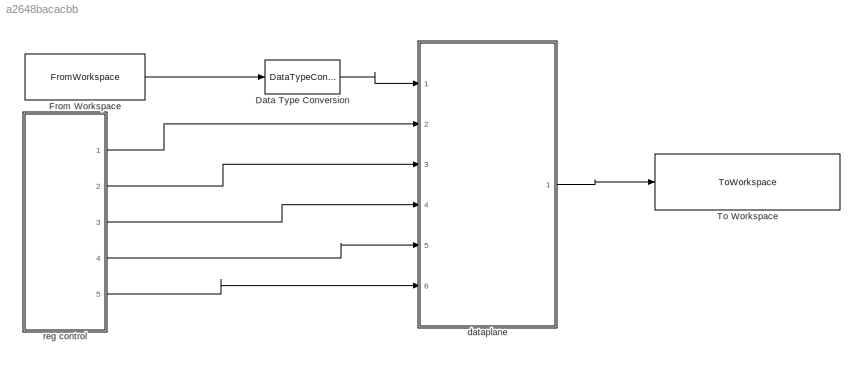
MODEL slx_a2648bacacbb
KIND model
CONFIG AbsTol = auto
CONFIG EnableMultiTasking = off
CONFIG FixedStep = auto
CONFIG InitFcn = callback_init
CONFIG MaxStep = auto
CONFIG MinStep = auto
CONFIG RelTol = 1e-3
CONFIG SampleTimeConstraint = Unconstrained
CONFIG SolverName = VariableStepAuto
CONFIG StartTime = 0.0
CONFIG StopFcn = callback_stop
CONFIG StopTime = stop_time
BLOCK [DataTypeConversion] Data Type Conversion
  OutDataTypeStr = fixdt(1,mp.W_bits,mp.F_bits)
  RndMeth = Floor
  SaturateOnIntegerOverflow = off
BLOCK [FromWorkspace] From Workspace
  OutputAfterFinalValue = Holding final value
  SampleTime = mp.Ts
  VariableName = mp.input_timeseries
BLOCK [ToWorkspace] To Workspace
  FixptAsFi = on
  MaxDataPoints = inf
  Ports = [1]
  SampleTime = -1
  SaveFormat = Timeseries
  VariableName = output_timeseries
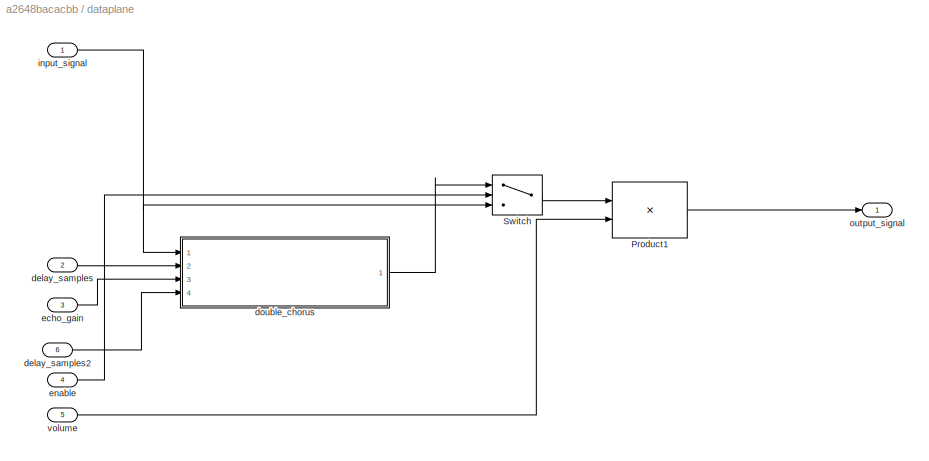
BLOCK [SubSystem] dataplane
  Ports = [6, 1]
  RequestExecContextInheritance = off
BLOCK [Product] dataplane/Product1
  OutDataTypeStr = Inherit: Same as first input
  Ports = [2, 1]
BLOCK [Switch] dataplane/Switch
  Criteria = u2 > Threshold
  InputSameDT = off
  SaturateOnIntegerOverflow = off
BLOCK [Inport] dataplane/delay_samples
  Port = 2
BLOCK [Inport] dataplane/delay_samples2
  Port = 6
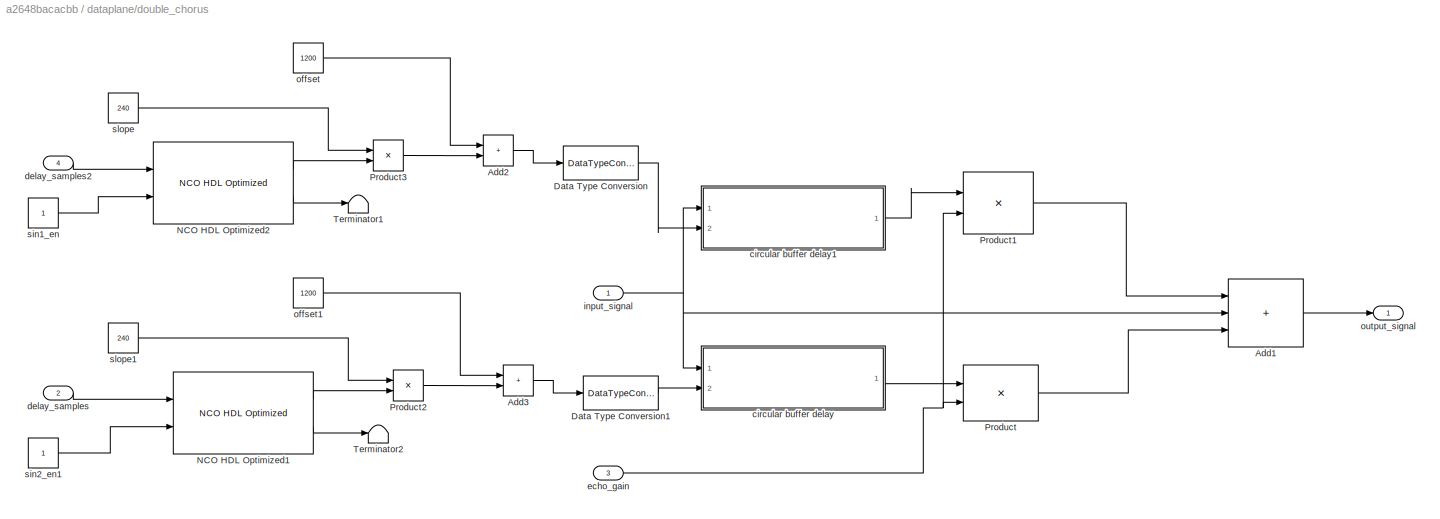
BLOCK [SubSystem] dataplane/double_chorus
  Ports = [4, 1]
  RequestExecContextInheritance = off
BLOCK [Sum] dataplane/double_chorus/Add1
  IconShape = rectangular
  Inputs = +++
  OutDataTypeStr = Inherit: Same as first input
  Ports = [3, 1]
BLOCK [Sum] dataplane/double_chorus/Add2
  IconShape = rectangular
  OutDataTypeStr = fixdt(0,16,0)
  Ports = [2, 1]
BLOCK [Sum] dataplane/double_chorus/Add3
  IconShape = rectangular
  OutDataTypeStr = fixdt(0,16,0)
  Ports = [2, 1]
BLOCK [DataTypeConversion] dataplane/double_chorus/Data Type Conversion
  OutDataTypeStr = fixdt(0,mp.DPRAM1_address_size,0)
  RndMeth = Floor
  SaturateOnIntegerOverflow = off
BLOCK [DataTypeConversion] dataplane/double_chorus/Data Type Conversion1
  OutDataTypeStr = fixdt(0,mp.DPRAM1_address_size,0)
  RndMeth = Floor
  SaturateOnIntegerOverflow = off
BLOCK [Reference] dataplane/double_chorus/NCO HDL Optimized1  REF=dsphdlsigops/NCO
HDL Optimized
  Ports = [2, 2]
  SourceBlock = dsphdlsigops/NCO\nHDL Optimized
  SourceProductName = DSP System Toolbox HDL Support
  SourceType = NCO HDL Optimized
BLOCK [Reference] dataplane/double_chorus/NCO HDL Optimized2  REF=dsphdlsigops/NCO
HDL Optimized
  Ports = [2, 2]
  SourceBlock = dsphdlsigops/NCO\nHDL Optimized
  SourceProductName = DSP System Toolbox HDL Support
  SourceType = NCO HDL Optimized
BLOCK [Product] dataplane/double_chorus/Product
  OutDataTypeStr = Inherit: Same as first input
  Ports = [2, 1]
BLOCK [Product] dataplane/double_chorus/Product1
  OutDataTypeStr = Inherit: Same as first input
  Ports = [2, 1]
BLOCK [Product] dataplane/double_chorus/Product2
  OutDataTypeStr = fixdt(0,16,0)
  Ports = [2, 1]
BLOCK [Product] dataplane/double_chorus/Product3
  OutDataTypeStr = fixdt(0,16,0)
  Ports = [2, 1]
BLOCK [Terminator] dataplane/double_chorus/Terminator1
BLOCK [Terminator] dataplane/double_chorus/Terminator2
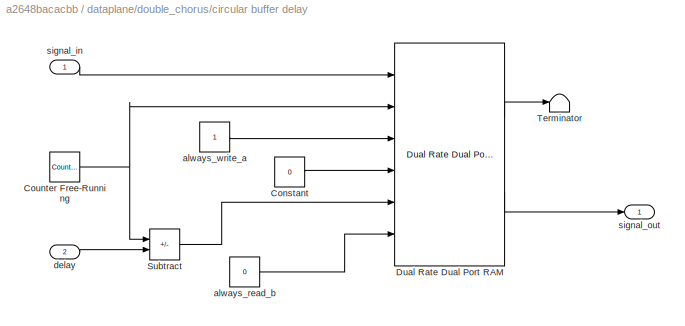
BLOCK [SubSystem] dataplane/double_chorus/circular buffer delay
  Ports = [2, 1]
  RequestExecContextInheritance = off
BLOCK [Constant] dataplane/double_chorus/circular buffer delay/Constant
  OutDataTypeStr = fixdt(1,mp.W_bits,mp.F_bits)
  SampleTime = mp.Ts
  Value = 0
BLOCK [Reference] dataplane/double_chorus/circular buffer delay/Counter Free-Running  REF=simulink/Sources/Counter
Free-Running
  Ports = [0, 1]
  SourceBlock = simulink/Sources/Counter\nFree-Running
  SourceProductBaseCode = SL
  SourceType = Counter Free-Running
BLOCK [Reference] dataplane/double_chorus/circular buffer delay/Dual Rate Dual Port RAM  REF=hdlsllib/HDL RAMs/Dual Rate Dual Port RAM
  Ports = [6, 2]
  SourceBlock = hdlsllib/HDL RAMs/Dual Rate Dual Port RAM
  SourceProductBaseCode = SL
  SourceType = Dual-rate dual-port RAM
BLOCK [Sum] dataplane/double_chorus/circular buffer delay/Subtract
  IconShape = rectangular
  Inputs = +-
  OutDataTypeStr = Inherit: Same as first input
  Ports = [2, 1]
BLOCK [Terminator] dataplane/double_chorus/circular buffer delay/Terminator
BLOCK [Constant] dataplane/double_chorus/circular buffer delay/always_read_b
  OutDataTypeStr = boolean
  SampleTime = mp.Ts
  Value = 0
BLOCK [Constant] dataplane/double_chorus/circular buffer delay/always_write_a
  OutDataTypeStr = boolean
  SampleTime = mp.Ts
BLOCK [Inport] dataplane/double_chorus/circular buffer delay/delay
  Port = 2
BLOCK [Inport] dataplane/double_chorus/circular buffer delay/signal_in
BLOCK [Outport] dataplane/double_chorus/circular buffer delay/signal_out
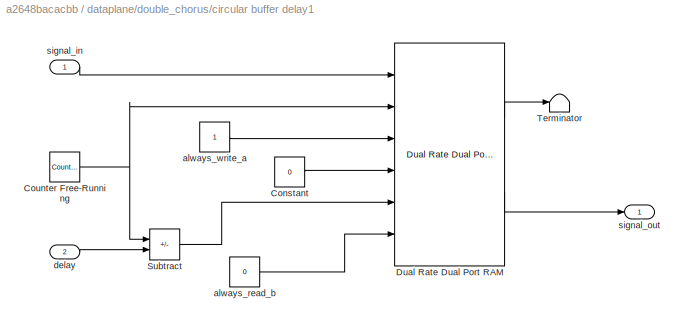
BLOCK [SubSystem] dataplane/double_chorus/circular buffer delay1
  Ports = [2, 1]
  RequestExecContextInheritance = off
BLOCK [Constant] dataplane/double_chorus/circular buffer delay1/Constant
  OutDataTypeStr = fixdt(1,mp.W_bits,mp.F_bits)
  SampleTime = mp.Ts
  Value = 0
BLOCK [Reference] dataplane/double_chorus/circular buffer delay1/Counter Free-Running  REF=simulink/Sources/Counter
Free-Running
  Ports = [0, 1]
  SourceBlock = simulink/Sources/Counter\nFree-Running
  SourceProductBaseCode = SL
  SourceType = Counter Free-Running
BLOCK [Reference] dataplane/double_chorus/circular buffer delay1/Dual Rate Dual Port RAM  REF=hdlsllib/HDL RAMs/Dual Rate Dual Port RAM
  Ports = [6, 2]
  SourceBlock = hdlsllib/HDL RAMs/Dual Rate Dual Port RAM
  SourceProductBaseCode = SL
  SourceType = Dual-rate dual-port RAM
BLOCK [Sum] dataplane/double_chorus/circular buffer delay1/Subtract
  IconShape = rectangular
  Inputs = +-
  OutDataTypeStr = Inherit: Same as first input
  Ports = [2, 1]
BLOCK [Terminator] dataplane/double_chorus/circular buffer delay1/Terminator
BLOCK [Constant] dataplane/double_chorus/circular buffer delay1/always_read_b
  OutDataTypeStr = boolean
  SampleTime = mp.Ts
  Value = 0
BLOCK [Constant] dataplane/double_chorus/circular buffer delay1/always_write_a
  OutDataTypeStr = boolean
  SampleTime = mp.Ts
BLOCK [Inport] dataplane/double_chorus/circular buffer delay1/delay
  Port = 2
BLOCK [Inport] dataplane/double_chorus/circular buffer delay1/signal_in
BLOCK [Outport] dataplane/double_chorus/circular buffer delay1/signal_out
BLOCK [Inport] dataplane/double_chorus/delay_samples
  Port = 2
BLOCK [Inport] dataplane/double_chorus/delay_samples2
  Port = 4
BLOCK [Inport] dataplane/double_chorus/echo_gain
  Port = 3
BLOCK [Inport] dataplane/double_chorus/input_signal
BLOCK [Constant] dataplane/double_chorus/offset
  OutDataTypeStr = fixdt(0,16,0)
  SampleTime = mp.Ts
  Value = 1200
BLOCK [Constant] dataplane/double_chorus/offset1
  OutDataTypeStr = fixdt(0,16,0)
  SampleTime = mp.Ts
  Value = 1200
BLOCK [Outport] dataplane/double_chorus/output_signal
BLOCK [Constant] dataplane/double_chorus/sin1_en
  OutDataTypeStr = boolean
  SampleTime = mp.Ts
BLOCK [Constant] dataplane/double_chorus/sin2_en1
  OutDataTypeStr = boolean
  SampleTime = mp.Ts
BLOCK [Constant] dataplane/double_chorus/slope
  OutDataTypeStr = fixdt(0,16,0)
  SampleTime = mp.Ts
  Value = 240
BLOCK [Constant] dataplane/double_chorus/slope1
  OutDataTypeStr = fixdt(0,16,0)
  SampleTime = mp.Ts
  Value = 240
BLOCK [Inport] dataplane/echo_gain
  Port = 3
BLOCK [Inport] dataplane/enable
  Port = 4
BLOCK [Inport] dataplane/input_signal
BLOCK [Outport] dataplane/output_signal
BLOCK [Inport] dataplane/volume
  Port = 5
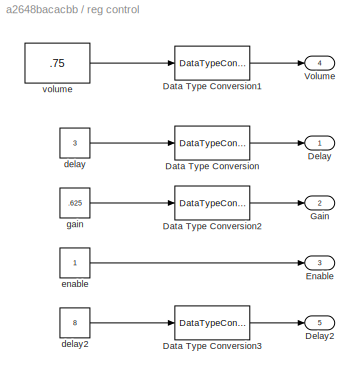
BLOCK [SubSystem] reg control
  Ports = [0, 5]
  RequestExecContextInheritance = off
BLOCK [DataTypeConversion] reg control/Data Type Conversion
  OutDataTypeStr = fixdt(0,mp.DPRAM1_address_size,0)
  RndMeth = Floor
  SaturateOnIntegerOverflow = off
BLOCK [DataTypeConversion] reg control/Data Type Conversion1
  OutDataTypeStr = fixdt(0,mp.W_gain,mp.F_gain)
  OutMax = [1]
  OutMin = [0]
  RndMeth = Floor
  SaturateOnIntegerOverflow = off
BLOCK [DataTypeConversion] reg control/Data Type Conversion2
  OutDataTypeStr = fixdt(0,mp.W_gain,mp.F_gain)
  RndMeth = Floor
  SaturateOnIntegerOverflow = off
BLOCK [DataTypeConversion] reg control/Data Type Conversion3
  OutDataTypeStr = fixdt(0,mp.DPRAM1_address_size,0)
  RndMeth = Floor
  SaturateOnIntegerOverflow = off
BLOCK [Outport] reg control/Delay
BLOCK [Outport] reg control/Delay2
  Port = 5
BLOCK [Outport] reg control/Enable
  Port = 3
BLOCK [Outport] reg control/Gain
  Port = 2
BLOCK [Outport] reg control/Volume
  Port = 4
BLOCK [Constant] reg control/delay
  SampleTime = mp.Ts
  Value = 3
BLOCK [Constant] reg control/delay2
  SampleTime = mp.Ts
  Value = 8
BLOCK [Constant] reg control/enable
  OutDataTypeStr = boolean
  SampleTime = mp.Ts
BLOCK [Constant] reg control/gain
  SampleTime = mp.Ts
  Value = .625
BLOCK [Constant] reg control/volume
  SampleTime = mp.Ts
  Value = .75
LINE Data Type Conversion:1 -> dataplane:1
LINE From Workspace:1 -> Data Type Conversion:1
LINE dataplane/Product1:1 -> dataplane/output_signal:1
LINE dataplane/Switch:1 -> dataplane/Product1:1
LINE dataplane/delay_samples2:1 -> dataplane/double_chorus:4
LINE dataplane/delay_samples:1 -> dataplane/double_chorus:2
LINE dataplane/double_chorus/Add1:1 -> dataplane/double_chorus/output_signal:1
LINE dataplane/double_chorus/Add2:1 -> dataplane/double_chorus/Data Type Conversion:1
LINE dataplane/double_chorus/Add3:1 -> dataplane/double_chorus/Data Type Conversion1:1
LINE dataplane/double_chorus/Data Type Conversion1:1 -> dataplane/double_chorus/circular buffer delay:2
LINE dataplane/double_chorus/Data Type Conversion:1 -> dataplane/double_chorus/circular buffer delay1:2
LINE dataplane/double_chorus/NCO HDL Optimized1:1 -> dataplane/double_chorus/Product2:2
LINE dataplane/double_chorus/NCO HDL Optimized1:2 -> dataplane/double_chorus/Terminator2:1
LINE dataplane/double_chorus/NCO HDL Optimized2:1 -> dataplane/double_chorus/Product3:2
LINE dataplane/double_chorus/NCO HDL Optimized2:2 -> dataplane/double_chorus/Terminator1:1
LINE dataplane/double_chorus/Product1:1 -> dataplane/double_chorus/Add1:1
LINE dataplane/double_chorus/Product2:1 -> dataplane/double_chorus/Add3:2
LINE dataplane/double_chorus/Product3:1 -> dataplane/double_chorus/Add2:2
LINE dataplane/double_chorus/Product:1 -> dataplane/double_chorus/Add1:3
LINE dataplane/double_chorus/circular buffer delay/Constant:1 -> dataplane/double_chorus/circular buffer delay/Dual Rate Dual Port RAM:4
NET dataplane/double_chorus/circular buffer delay/Counter Free-Running:1 -> dataplane/double_chorus/circular buffer delay/Dual Rate Dual Port RAM:2, dataplane/double_chorus/circular buffer delay/Subtract:1
LINE dataplane/double_chorus/circular buffer delay/Dual Rate Dual Port RAM:1 -> dataplane/double_chorus/circular buffer delay/Terminator:1
LINE dataplane/double_chorus/circular buffer delay/Dual Rate Dual Port RAM:2 -> dataplane/double_chorus/circular buffer delay/signal_out:1
LINE dataplane/double_chorus/circular buffer delay/Subtract:1 -> dataplane/double_chorus/circular buffer delay/Dual Rate Dual Port RAM:5
LINE dataplane/double_chorus/circular buffer delay/always_read_b:1 -> dataplane/double_chorus/circular buffer delay/Dual Rate Dual Port RAM:6
LINE dataplane/double_chorus/circular buffer delay/always_write_a:1 -> dataplane/double_chorus/circular buffer delay/Dual Rate Dual Port RAM:3
LINE dataplane/double_chorus/circular buffer delay/delay:1 -> dataplane/double_chorus/circular buffer delay/Subtract:2
LINE dataplane/double_chorus/circular buffer delay/signal_in:1 -> dataplane/double_chorus/circular buffer delay/Dual Rate Dual Port RAM:1
LINE dataplane/double_chorus/circular buffer delay1/Constant:1 -> dataplane/double_chorus/circular buffer delay1/Dual Rate Dual Port RAM:4
NET dataplane/double_chorus/circular buffer delay1/Counter Free-Running:1 -> dataplane/double_chorus/circular buffer delay1/Dual Rate Dual Port RAM:2, dataplane/double_chorus/circular buffer delay1/Subtract:1
LINE dataplane/double_chorus/circular buffer delay1/Dual Rate Dual Port RAM:1 -> dataplane/double_chorus/circular buffer delay1/Terminator:1
LINE dataplane/double_chorus/circular buffer delay1/Dual Rate Dual Port RAM:2 -> dataplane/double_chorus/circular buffer delay1/signal_out:1
LINE dataplane/double_chorus/circular buffer delay1/Subtract:1 -> dataplane/double_chorus/circular buffer delay1/Dual Rate Dual Port RAM:5
LINE dataplane/double_chorus/circular buffer delay1/always_read_b:1 -> dataplane/double_chorus/circular buffer delay1/Dual Rate Dual Port RAM:6
LINE dataplane/double_chorus/circular buffer delay1/always_write_a:1 -> dataplane/double_chorus/circular buffer delay1/Dual Rate Dual Port RAM:3
LINE dataplane/double_chorus/circular buffer delay1/delay:1 -> dataplane/double_chorus/circular buffer delay1/Subtract:2
LINE dataplane/double_chorus/circular buffer delay1/signal_in:1 -> dataplane/double_chorus/circular buffer delay1/Dual Rate Dual Port RAM:1
LINE dataplane/double_chorus/circular buffer delay1:1 -> dataplane/double_chorus/Product1:1
LINE dataplane/double_chorus/circular buffer delay:1 -> dataplane/double_chorus/Product:1
LINE dataplane/double_chorus/delay_samples2:1 -> dataplane/double_chorus/NCO HDL Optimized2:1
LINE dataplane/double_chorus/delay_samples:1 -> dataplane/double_chorus/NCO HDL Optimized1:1
NET dataplane/double_chorus/echo_gain:1 -> dataplane/double_chorus/Product1:2, dataplane/double_chorus/Product:2
NET dataplane/double_chorus/input_signal:1 -> dataplane/double_chorus/Add1:2, dataplane/double_chorus/circular buffer delay1:1, dataplane/double_chorus/circular buffer delay:1
LINE dataplane/double_chorus/offset1:1 -> dataplane/double_chorus/Add3:1
LINE dataplane/double_chorus/offset:1 -> dataplane/double_chorus/Add2:1
LINE dataplane/double_chorus/sin1_en:1 -> dataplane/double_chorus/NCO HDL Optimized2:2
LINE dataplane/double_chorus/sin2_en1:1 -> dataplane/double_chorus/NCO HDL Optimized1:2
LINE dataplane/double_chorus/slope1:1 -> dataplane/double_chorus/Product2:1
LINE dataplane/double_chorus/slope:1 -> dataplane/double_chorus/Product3:1
LINE dataplane/double_chorus:1 -> dataplane/Switch:1
LINE dataplane/echo_gain:1 -> dataplane/double_chorus:3
LINE dataplane/enable:1 -> dataplane/Switch:2
NET dataplane/input_signal:1 -> dataplane/Switch:3, dataplane/double_chorus:1
LINE dataplane/volume:1 -> dataplane/Product1:2
LINE dataplane:1 -> To Workspace:1
LINE reg control/Data Type Conversion1:1 -> reg control/Volume:1
LINE reg control/Data Type Conversion2:1 -> reg control/Gain:1
LINE reg control/Data Type Conversion3:1 -> reg control/Delay2:1
LINE reg control/Data Type Conversion:1 -> reg control/Delay:1
LINE reg control/delay2:1 -> reg control/Data Type Conversion3:1
LINE reg control/delay:1 -> reg control/Data Type Conversion:1
LINE reg control/enable:1 -> reg control/Enable:1
LINE reg control/gain:1 -> reg control/Data Type Conversion2:1
LINE reg control/volume:1 -> reg control/Data Type Conversion1:1
LINE reg control:1 -> dataplane:2
LINE reg control:2 -> dataplane:3
LINE reg control:3 -> dataplane:4
LINE reg control:4 -> dataplane:5
LINE reg control:5 -> dataplane:6
note: NET lines group one-source signal fan-out (src -> all destinations, sorted); 1:1 wires keep LINE
